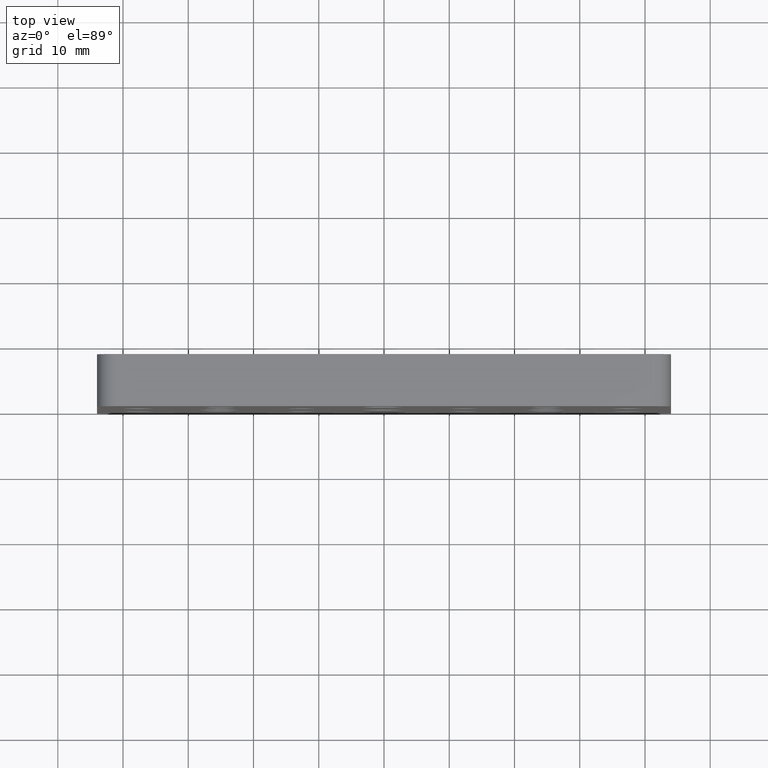
[diagram: clean part render]
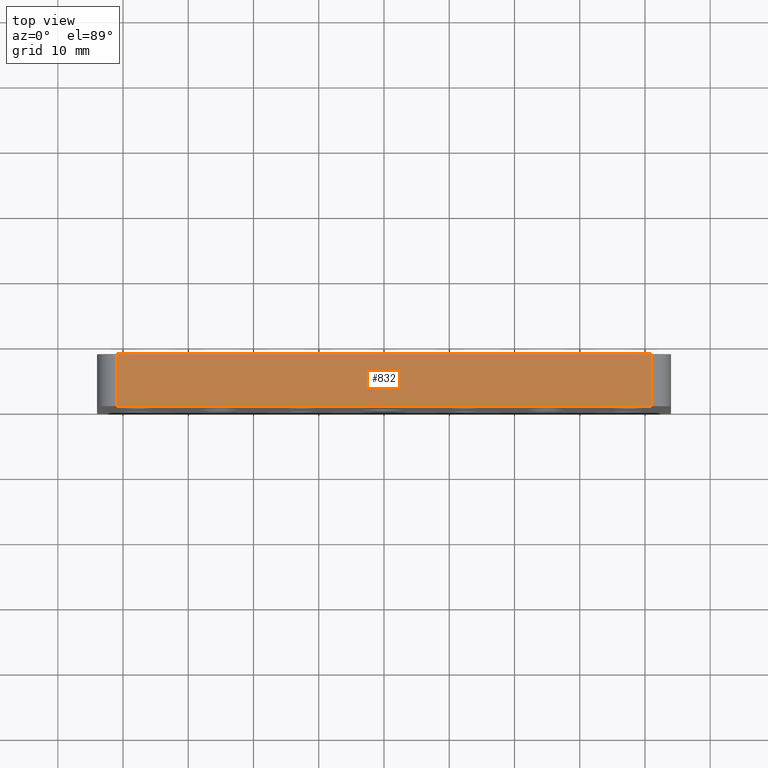
[diagram: same view with one face highlighted and labeled with its STEP entity id]
A machine part, top view. The second image highlights one B-rep face of the part: STEP entity #832.
In plain terms, the highlighted planar face has unit normal (0, 0, -1).
Its self-contained STEP definition (entity closure, byte-faithful):
#114 = ORIENTED_EDGE ( 'NONE', *, *, #643, .F. ) ;
#202 = ORIENTED_EDGE ( 'NONE', *, *, #1818, .T. ) ;
#260 = CARTESIAN_POINT ( 'NONE',  ( -40.99999999999999300, 8.000000000000000000, 34.50000000000000000 ) ) ;
#428 = VERTEX_POINT ( 'NONE', #1802 ) ;
#464 = DIRECTION ( 'NONE',  ( 0.0000000000000000000, -1.000000000000000000, 0.0000000000000000000 ) ) ;
#473 = VECTOR ( 'NONE', #464, 1000.000000000000000 ) ;
#532 = CARTESIAN_POINT ( 'NONE',  ( 40.99999999999999300, 8.000000000000000000, 34.50000000000000000 ) ) ;
#556 = EDGE_CURVE ( 'NONE', #2224, #1595, #2393, .T. ) ;
#558 = DIRECTION ( 'NONE',  ( 1.000000000000000000, 0.0000000000000000000, 0.0000000000000000000 ) ) ;
#643 = EDGE_CURVE ( 'NONE', #428, #1094, #2590, .T. ) ;
#832 = ADVANCED_FACE ( 'NONE', ( #2366 ), #1951, .F. ) ;
#997 = DIRECTION ( 'NONE',  ( 1.000000000000000000, 0.0000000000000000000, 0.0000000000000000000 ) ) ;
#1017 = CARTESIAN_POINT ( 'NONE',  ( -44.00000000000000000, 8.000000000000000000, 34.50000000000000000 ) ) ;
#1094 = VERTEX_POINT ( 'NONE', #1413 ) ;
#1138 = DIRECTION ( 'NONE',  ( -0.0000000000000000000, 1.000000000000000000, -0.0000000000000000000 ) ) ;
#1139 = ORIENTED_EDGE ( 'NONE', *, *, #1192, .T. ) ;
#1192 = EDGE_CURVE ( 'NONE', #428, #2224, #2110, .T. ) ;
#1372 = CARTESIAN_POINT ( 'NONE',  ( -44.00000000000000000, 0.0000000000000000000, 34.50000000000000000 ) ) ;
#1413 = CARTESIAN_POINT ( 'NONE',  ( 40.99999999999999300, 8.000000000000000000, 34.50000000000000000 ) ) ;
#1450 = CARTESIAN_POINT ( 'NONE',  ( 40.99999999999999300, 0.0000000000000000000, 34.50000000000000000 ) ) ;
#1521 = CARTESIAN_POINT ( 'NONE',  ( -40.99999999999999300, 0.0000000000000000000, 34.50000000000000000 ) ) ;
#1595 = VERTEX_POINT ( 'NONE', #1450 ) ;
#1684 = EDGE_LOOP ( 'NONE', ( #114, #1139, #2129, #202 ) ) ;
#1802 = CARTESIAN_POINT ( 'NONE',  ( -40.99999999999999300, 8.000000000000000000, 34.50000000000000000 ) ) ;
#1818 = EDGE_CURVE ( 'NONE', #1595, #1094, #2074, .T. ) ;
#1951 = PLANE ( 'NONE',  #2413 ) ;
#1962 = DIRECTION ( 'NONE',  ( 0.0000000000000000000, 0.0000000000000000000, -1.000000000000000000 ) ) ;
#2045 = VECTOR ( 'NONE', #997, 1000.000000000000000 ) ;
#2074 = LINE ( 'NONE', #532, #2530 ) ;
#2110 = LINE ( 'NONE', #260, #473 ) ;
#2129 = ORIENTED_EDGE ( 'NONE', *, *, #556, .T. ) ;
#2168 = DIRECTION ( 'NONE',  ( -1.000000000000000000, 0.0000000000000000000, -0.0000000000000000000 ) ) ;
#2224 = VERTEX_POINT ( 'NONE', #1521 ) ;
#2300 = VECTOR ( 'NONE', #558, 1000.000000000000000 ) ;
#2366 = FACE_OUTER_BOUND ( 'NONE', #1684, .T. ) ;
#2370 = CARTESIAN_POINT ( 'NONE',  ( -44.00000000000000000, 8.000000000000000000, 34.50000000000000000 ) ) ;
#2393 = LINE ( 'NONE', #1372, #2300 ) ;
#2413 = AXIS2_PLACEMENT_3D ( 'NONE', #2370, #1962, #2168 ) ;
#2530 = VECTOR ( 'NONE', #1138, 1000.000000000000000 ) ;
#2590 = LINE ( 'NONE', #1017, #2045 ) ;